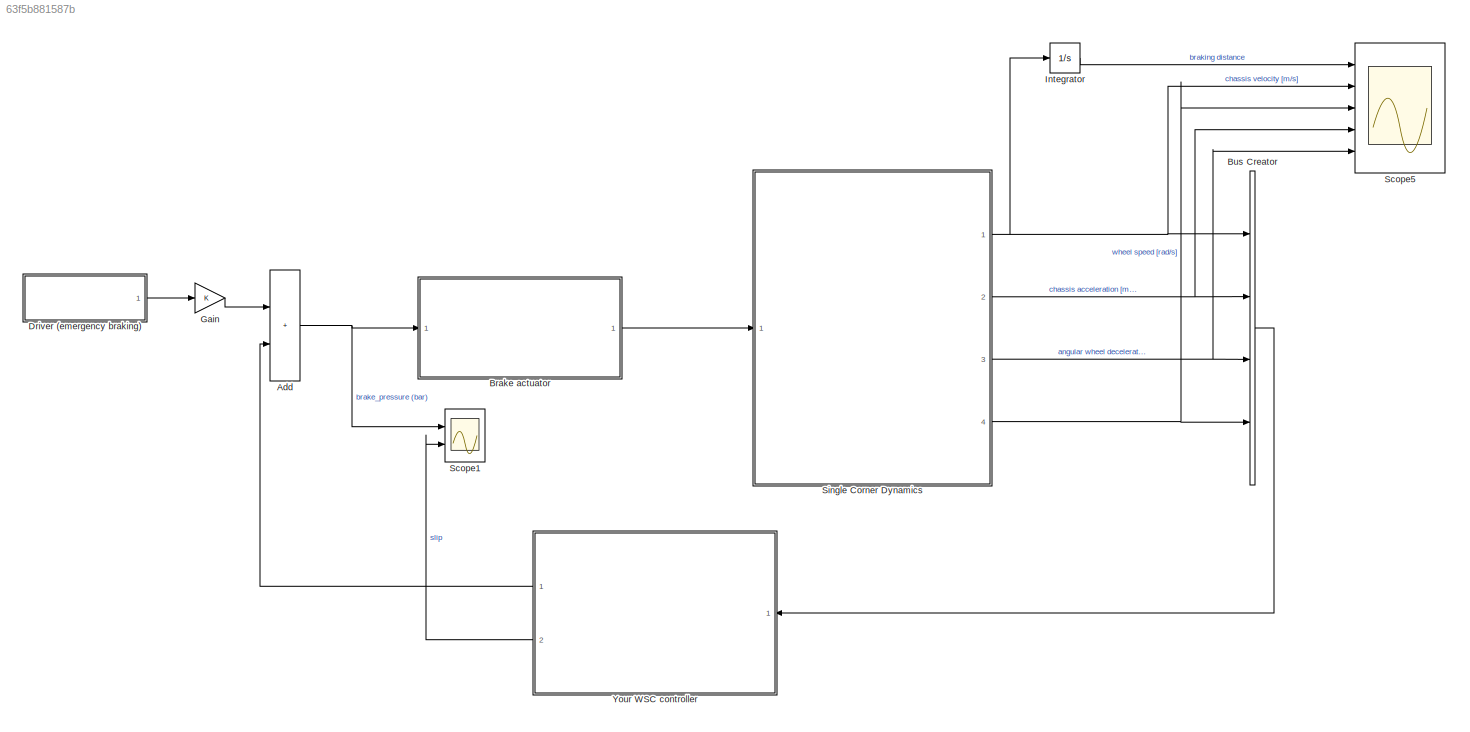
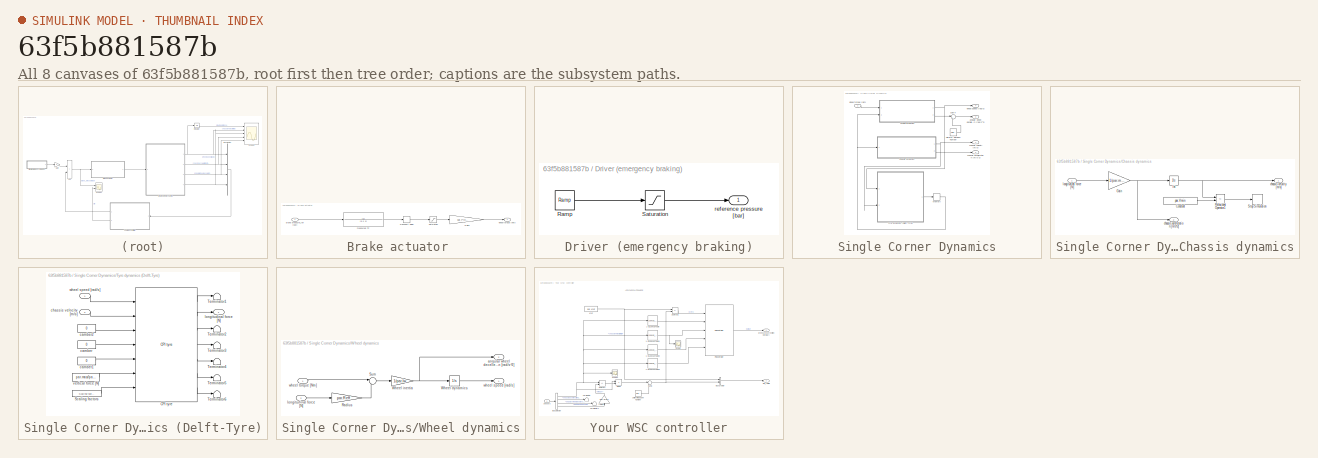
[diagram: thumbnail index - all 8 canvases of the model, root first then tree order]
MODEL slx_63f5b881587b
KIND model
CONFIG AbsTol = auto
CONFIG EnableMultiTasking = off
CONFIG FixedStep = auto
CONFIG MaxStep = auto
CONFIG MinStep = auto
CONFIG RelTol = 1e-3
CONFIG SampleTimeConstraint = Unconstrained
CONFIG Solver = VariableStepAuto
CONFIG SolverName = VariableStepAuto
CONFIG StartTime = 0.0
CONFIG StopTime = 10.0
BLOCK [Sum] Add
  IconShape = rectangular
  Ports = [2, 1]
BLOCK [SubSystem] Brake actuator 
  Ports = [1, 1]
  RequestExecContextInheritance = off
BLOCK [TransferFcn] Brake actuator / measured TF 
  Denominator = [0.1 1]
BLOCK [Gain] Brake actuator /Gain1
  Gain = par.Pres2Moment
BLOCK [Saturate] Brake actuator /Saturation
  LowerLimit = 0
  UpperLimit = par.max_pressure
BLOCK [TransportDelay] Brake actuator /Transport Delay
  DelayTime = 0.06
  Ports = [1, 1]
BLOCK [Inport] Brake actuator /brake preasure_ref [bar]
BLOCK [Outport] Brake actuator /wheel torque [Nm]
  VectorParamsAs1DForOutWhenUnconnected = off
BLOCK [BusCreator] Bus Creator
  DisplayOption = bar
  InheritFromInputs = on
  Inputs = 4
  Ports = [4, 1]
BLOCK [SubSystem] Driver (emergency braking)
  Ports = [0, 1]
  RequestExecContextInheritance = off
BLOCK [Reference] Driver (emergency braking)/Ramp  REF=simulink/Sources/Ramp
  Ports = [0, 1]
  SourceBlock = simulink/Sources/Ramp
  SourceProductBaseCode = SL
  SourceType = Ramp
BLOCK [Saturate] Driver (emergency braking)/Saturation
  LowerLimit = 0
  UpperLimit = 100
BLOCK [Outport] Driver (emergency braking)/reference pressure [bar]
  VectorParamsAs1DForOutWhenUnconnected = off
BLOCK [Gain] Gain
BLOCK [Integrator] Integrator
  Ports = [1, 1]
BLOCK [Scope] Scope1
  Floating = off
  NumInputPorts = 2
  Ports = [2]
  ScopeSpecificationString = Simulink.scopes.TimeScopeBlockCfg('CurrentConfiguration', extmgr.ConfigurationSet(extmgr.Configuration('Core','General UI',true),extmgr.Configuration('Core','Source UI',true),extmgr.Configuration('Sources','WiredSimulink',true,'DataLoggingVariableName','ScopeData1'),extmgr.Configuration('Visuals','Time Domain',true,'SerializedDisplays',{struct('MinYLimReal','-162.47683','MaxYLimReal','218.52937','...<+2092ch>
BLOCK [Scope] Scope5
  Floating = off
  NumInputPorts = 5
  Ports = [5]
  ScopeSpecificationString = Simulink.scopes.TimeScopeBlockCfg('CurrentConfiguration', extmgr.ConfigurationSet(extmgr.Configuration('Core','General UI',true),extmgr.Configuration('Core','Source UI',true),extmgr.Configuration('Sources','WiredSimulink',true,'DataLoggingVariableName','ScopeData2'),extmgr.Configuration('Visuals','Time Domain',true,'SerializedDisplays',{struct('MinYLimReal','-18.23122','MaxYLimReal','164.08101','Y...<+3855ch>
BLOCK [SubSystem] Single Corner Dynamics
  Ports = [1, 4]
  RequestExecContextInheritance = off
BLOCK [SubSystem] Single Corner Dynamics/Chassis dynamics
  Ports = [1, 2]
  RequestExecContextInheritance = off
BLOCK [Constant] Single Corner Dynamics/Chassis dynamics/Constant
  Value = par.Vmin
BLOCK [Gain] Single Corner Dynamics/Chassis dynamics/Gain
  Gain = 1/par.mass
BLOCK [Integrator] Single Corner Dynamics/Chassis dynamics/Int
  InitialCondition = par.V0
  LimitOutput = on
  LowerSaturationLimit = eps
  Ports = [1, 1]
  UpperSaturationLimit = 200/3.6
BLOCK [RelationalOperator] Single Corner Dynamics/Chassis dynamics/Relational Operator1
  Operator = <=
  Ports = [2, 1]
BLOCK [Stop] Single Corner Dynamics/Chassis dynamics/Stop Simulation
BLOCK [Outport] Single Corner Dynamics/Chassis dynamics/chassis acceleration [m//s^2]
  Port = 2
  VectorParamsAs1DForOutWhenUnconnected = off
BLOCK [Outport] Single Corner Dynamics/Chassis dynamics/chassis velocity [m//s]
  VectorParamsAs1DForOutWhenUnconnected = off
BLOCK [Inport] Single Corner Dynamics/Chassis dynamics/longitudinal force [N]
BLOCK [Memory] Single Corner Dynamics/Memory
BLOCK [Sum] Single Corner Dynamics/Sum4
  Inputs = |++
  Ports = [2, 1]
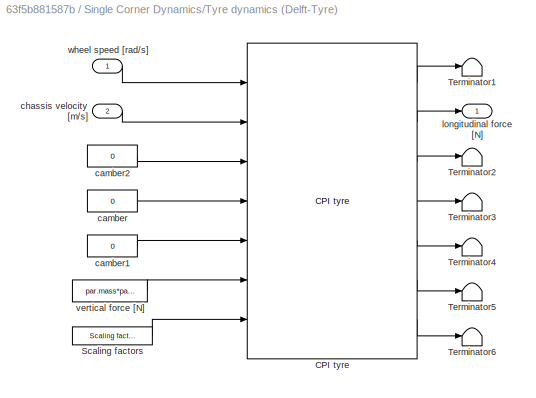
BLOCK [SubSystem] Single Corner Dynamics/Tyre dynamics (Delft-Tyre)
  Ports = [2, 1]
  RequestExecContextInheritance = off
BLOCK [Reference] Single Corner Dynamics/Tyre dynamics (Delft-Tyre)/CPI tyre  REF=Delft_Tyre_dtlib/Simulink/CPI tyre
  Ports = [7, 7]
  SourceBlock = Delft_Tyre_dtlib/Simulink/CPI tyre
  SourceType = CPI_tyre
  Tag = CPI tyre
BLOCK [Reference] Single Corner Dynamics/Tyre dynamics (Delft-Tyre)/Scaling factors  REF=Delft_Tyre_sm1glib/SimMechanics 1G/Scaling factors
  Ports = [0, 1]
  SourceBlock = Delft_Tyre_sm1glib/SimMechanics 1G/Scaling factors
  Tag = Scaling factors
BLOCK [Terminator] Single Corner Dynamics/Tyre dynamics (Delft-Tyre)/Terminator1
BLOCK [Terminator] Single Corner Dynamics/Tyre dynamics (Delft-Tyre)/Terminator2
BLOCK [Terminator] Single Corner Dynamics/Tyre dynamics (Delft-Tyre)/Terminator3
BLOCK [Terminator] Single Corner Dynamics/Tyre dynamics (Delft-Tyre)/Terminator4
BLOCK [Terminator] Single Corner Dynamics/Tyre dynamics (Delft-Tyre)/Terminator5
BLOCK [Terminator] Single Corner Dynamics/Tyre dynamics (Delft-Tyre)/Terminator6
BLOCK [Constant] Single Corner Dynamics/Tyre dynamics (Delft-Tyre)/camber
  Value = 0
BLOCK [Constant] Single Corner Dynamics/Tyre dynamics (Delft-Tyre)/camber1
  Value = 0
BLOCK [Constant] Single Corner Dynamics/Tyre dynamics (Delft-Tyre)/camber2
  Value = 0
BLOCK [Inport] Single Corner Dynamics/Tyre dynamics (Delft-Tyre)/chassis velocity [m//s]
  Port = 2
BLOCK [Outport] Single Corner Dynamics/Tyre dynamics (Delft-Tyre)/longitudinal force [N]
  VectorParamsAs1DForOutWhenUnconnected = off
BLOCK [Constant] Single Corner Dynamics/Tyre dynamics (Delft-Tyre)/vertical force [N]
  Value = par.mass*par.g
BLOCK [Inport] Single Corner Dynamics/Tyre dynamics (Delft-Tyre)/wheel speed [rad//s]
BLOCK [UniformRandomNumber] Single Corner Dynamics/Uniform Random Number
  Maximum = 0.5
  Minimum = -0.5
  SampleTime = 0.1
BLOCK [SubSystem] Single Corner Dynamics/Wheel dynamics
  Ports = [2, 2]
  RequestExecContextInheritance = off
BLOCK [Gain] Single Corner Dynamics/Wheel dynamics/Radius
  Gain = par.Reff
  OutDataTypeStr = Inherit: Same as input
  ParamDataTypeStr = Inherit: Same as input
  SaturateOnIntegerOverflow = on
BLOCK [Sum] Single Corner Dynamics/Wheel dynamics/Sum
  InputSameDT = on
  Inputs = |--
  OutDataTypeStr = Inherit: Same as first input
  Ports = [2, 1]
  SaturateOnIntegerOverflow = on
BLOCK [Integrator] Single Corner Dynamics/Wheel dynamics/Wheel dynamics
  InitialCondition = par.V0/par.Reff
  LimitOutput = on
  LowerSaturationLimit = eps
  Ports = [1, 1]
  UpperSaturationLimit = 200/3.6/par.Reff
BLOCK [Gain] Single Corner Dynamics/Wheel dynamics/Wheel inertia
  Gain = 1/par.Iw
  OutDataTypeStr = Inherit: Same as input
  ParamDataTypeStr = Inherit: Same as input
  SaturateOnIntegerOverflow = on
BLOCK [Outport] Single Corner Dynamics/Wheel dynamics/angular wheel decelleration [rad//s^2]
  Port = 2
  VectorParamsAs1DForOutWhenUnconnected = off
BLOCK [Inport] Single Corner Dynamics/Wheel dynamics/longitudinal force [N]
  Port = 2
BLOCK [Outport] Single Corner Dynamics/Wheel dynamics/wheel speed [rad//s]
  VectorParamsAs1DForOutWhenUnconnected = off
BLOCK [Inport] Single Corner Dynamics/Wheel dynamics/wheel torque [Nm]
BLOCK [Outport] Single Corner Dynamics/angular wheel decelleration [rad//s^2]
  Port = 3
  VectorParamsAs1DForOutWhenUnconnected = off
BLOCK [Outport] Single Corner Dynamics/chassis acceleration [m//s^2]
  Port = 2
  VectorParamsAs1DForOutWhenUnconnected = off
BLOCK [Outport] Single Corner Dynamics/chassis velocity [m//s]
  VectorParamsAs1DForOutWhenUnconnected = off
BLOCK [Outport] Single Corner Dynamics/wheel speed [rad//s]
  Port = 4
  VectorParamsAs1DForOutWhenUnconnected = off
BLOCK [Inport] Single Corner Dynamics/wheel torque [Nm]
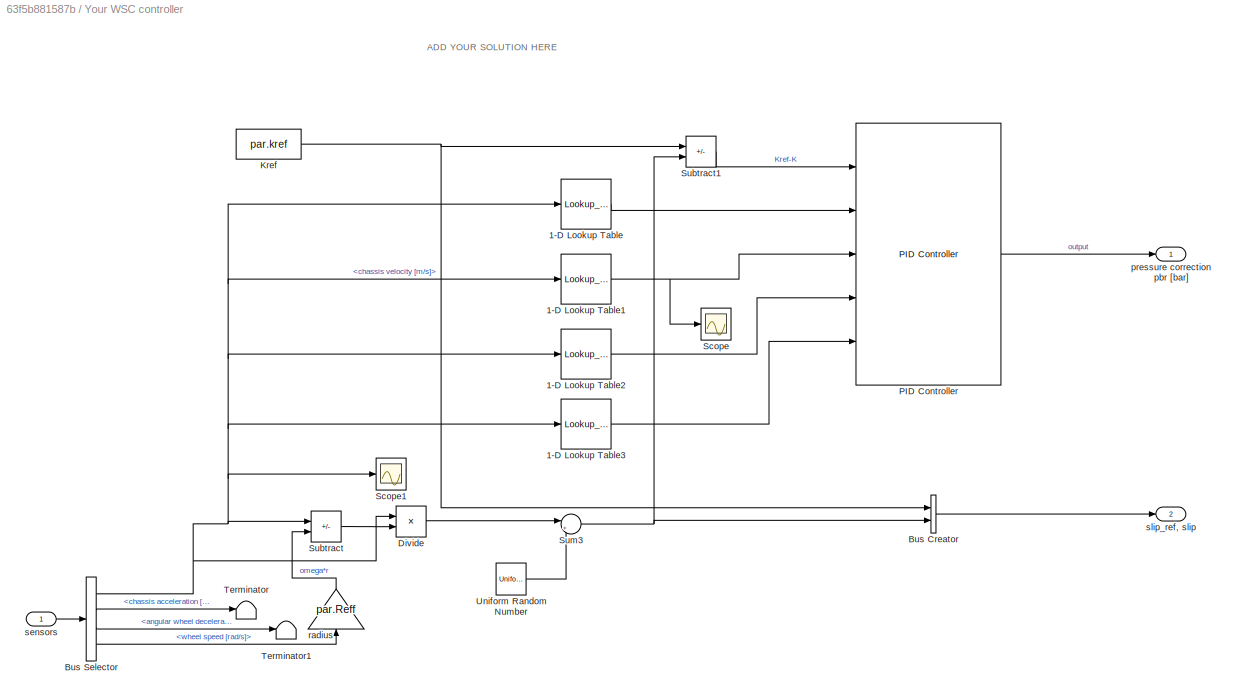
BLOCK [SubSystem] Your WSC controller
  Ports = [1, 2]
  RequestExecContextInheritance = off
BLOCK [Outport] Your WSC controller/ pressure correction pbr [bar]
  VectorParamsAs1DForOutWhenUnconnected = off
BLOCK [Lookup_n-D] Your WSC controller/1-D Lookup Table
  BreakpointsForDimension1 = [0;5;15;25.3;30]
  InternalRulePriority = Speed
  NumberOfTableDimensions = 1
  Ports = [1, 1]
  RndMeth = Simplest
  Table = [110;110*1.2;110*1.2;110*1.8;110*2]
BLOCK [Lookup_n-D] Your WSC controller/1-D Lookup Table1
  BreakpointsForDimension1 = [0;5;15;25;30]
  InternalRulePriority = Speed
  NumberOfTableDimensions = 1
  Ports = [1, 1]
  RndMeth = Simplest
  Table = [70*0.9;70*1.1;70*1.1;70*1.2;70*1.5]
BLOCK [Lookup_n-D] Your WSC controller/1-D Lookup Table2
  BreakpointsForDimension1 = [0;10;15;25;30]
  InternalRulePriority = Speed
  NumberOfTableDimensions = 1
  Ports = [1, 1]
  RndMeth = Simplest
  Table = [0.7;0.8;0.9;0.9;0.7]
BLOCK [Lookup_n-D] Your WSC controller/1-D Lookup Table3
  BreakpointsForDimension1 = [0;10;20;30;35]
  InternalRulePriority = Speed
  NumberOfTableDimensions = 1
  Ports = [1, 1]
  RndMeth = Simplest
  Table = [100;100;100;100;100]
BLOCK [BusCreator] Your WSC controller/Bus Creator
  DisplayOption = bar
  InheritFromInputs = on
  Inputs = 2
  Ports = [2, 1]
BLOCK [BusSelector] Your WSC controller/Bus Selector
  OutputSignals = chassis velocity [m/s],chassis acceleration [m/s^2],angular wheel deceleration [rad/s^2],wheel speed [rad/s]
  Ports = [1, 4]
BLOCK [Product] Your WSC controller/Divide
  Inputs = /*
  Ports = [2, 1]
BLOCK [Constant] Your WSC controller/Kref
  Value = par.kref
BLOCK [Reference] Your WSC controller/PID Controller  REF=simulink/Continuous/PID Controller
  Ports = [5, 1]
  SourceBlock = simulink/Continuous/PID Controller
  SourceProductBaseCode = SL
  SourceType = PID 1dof
BLOCK [Scope] Your WSC controller/Scope
  Floating = off
  NumInputPorts = 1
  Ports = [1]
  ScopeSpecificationString = Simulink.scopes.TimeScopeBlockCfg('CurrentConfiguration', extmgr.ConfigurationSet(extmgr.Configuration('Core','General UI',true),extmgr.Configuration('Core','Source UI',true),extmgr.Configuration('Sources','WiredSimulink',true,'DataLoggingVariableName','ScopeData1'),extmgr.Configuration('Visuals','Time Domain',true,'SerializedDisplays',{struct('MinYLimReal','66.93679','MaxYLimReal','105.34063','YL...<+1386ch>
BLOCK [Scope] Your WSC controller/Scope1
  Floating = off
  NumInputPorts = 1
  Ports = [1]
  ScopeSpecificationString = Simulink.scopes.TimeScopeBlockCfg('CurrentConfiguration', extmgr.ConfigurationSet(extmgr.Configuration('Core','General UI',true),extmgr.Configuration('Core','Source UI',true),extmgr.Configuration('Sources','WiredSimulink',true,'DataLoggingVariableName','ScopeData2'),extmgr.Configuration('Visuals','Time Domain',true,'SerializedDisplays',{struct('MinYLimReal','-1.04193','MaxYLimReal','37.15293','YLa...<+1387ch>
BLOCK [Sum] Your WSC controller/Subtract
  IconShape = rectangular
  Inputs = +-
  Ports = [2, 1]
BLOCK [Sum] Your WSC controller/Subtract1
  IconShape = rectangular
  Inputs = +-
  Ports = [2, 1]
BLOCK [Sum] Your WSC controller/Sum3
  Inputs = |++
  Ports = [2, 1]
BLOCK [Terminator] Your WSC controller/Terminator
BLOCK [Terminator] Your WSC controller/Terminator1
BLOCK [UniformRandomNumber] Your WSC controller/Uniform Random Number
  Maximum = 0.025
  Minimum = -0.025
  SampleTime = 0.1
BLOCK [Gain] Your WSC controller/radius
  Gain = par.Reff
  NameLocation = right
BLOCK [Inport] Your WSC controller/sensors
BLOCK [Outport] Your WSC controller/slip_ref, slip
  Port = 2
ANNOTATION Your WSC controller: ADD YOUR SOLUTION HERE
NET Add:1 -> Brake actuator :1, Scope1:1
LINE Brake actuator / measured TF :1 -> Brake actuator /Transport Delay:1
LINE Brake actuator /Gain1:1 -> Brake actuator /wheel torque [Nm]:1
LINE Brake actuator /Saturation:1 -> Brake actuator /Gain1:1
LINE Brake actuator /Transport Delay:1 -> Brake actuator /Saturation:1
LINE Brake actuator /brake preasure_ref [bar]:1 -> Brake actuator / measured TF :1
LINE Brake actuator :1 -> Single Corner Dynamics:1
LINE Bus Creator:1 -> Your WSC controller:1
LINE Driver (emergency braking)/Ramp:1 -> Driver (emergency braking)/Saturation:1
LINE Driver (emergency braking)/Saturation:1 -> Driver (emergency braking)/reference pressure [bar]:1
LINE Driver (emergency braking):1 -> Gain:1
LINE Gain:1 -> Add:1
LINE Integrator:1 -> Scope5:1
LINE Single Corner Dynamics/Chassis dynamics/Constant:1 -> Single Corner Dynamics/Chassis dynamics/Relational Operator1:2
NET Single Corner Dynamics/Chassis dynamics/Gain:1 -> Single Corner Dynamics/Chassis dynamics/Int:1, Single Corner Dynamics/Chassis dynamics/chassis acceleration [m//s^2]:1
NET Single Corner Dynamics/Chassis dynamics/Int:1 -> Single Corner Dynamics/Chassis dynamics/Relational Operator1:1, Single Corner Dynamics/Chassis dynamics/chassis velocity [m//s]:1
LINE Single Corner Dynamics/Chassis dynamics/Relational Operator1:1 -> Single Corner Dynamics/Chassis dynamics/Stop Simulation:1
LINE Single Corner Dynamics/Chassis dynamics/longitudinal force [N]:1 -> Single Corner Dynamics/Chassis dynamics/Gain:1
NET Single Corner Dynamics/Chassis dynamics:1 -> Single Corner Dynamics/Tyre dynamics (Delft-Tyre):2, Single Corner Dynamics/chassis velocity [m//s]:1
LINE Single Corner Dynamics/Chassis dynamics:2 -> Single Corner Dynamics/chassis acceleration [m//s^2]:1
NET Single Corner Dynamics/Memory:1 -> Single Corner Dynamics/Chassis dynamics:1, Single Corner Dynamics/Wheel dynamics:2
LINE Single Corner Dynamics/Sum4:1 -> Single Corner Dynamics/angular wheel decelleration [rad//s^2]:1
LINE Single Corner Dynamics/Tyre dynamics (Delft-Tyre)/CPI tyre:1 -> Single Corner Dynamics/Tyre dynamics (Delft-Tyre)/Terminator1:1
LINE Single Corner Dynamics/Tyre dynamics (Delft-Tyre)/CPI tyre:2 -> Single Corner Dynamics/Tyre dynamics (Delft-Tyre)/longitudinal force [N]:1
LINE Single Corner Dynamics/Tyre dynamics (Delft-Tyre)/CPI tyre:3 -> Single Corner Dynamics/Tyre dynamics (Delft-Tyre)/Terminator2:1
LINE Single Corner Dynamics/Tyre dynamics (Delft-Tyre)/CPI tyre:4 -> Single Corner Dynamics/Tyre dynamics (Delft-Tyre)/Terminator3:1
LINE Single Corner Dynamics/Tyre dynamics (Delft-Tyre)/CPI tyre:5 -> Single Corner Dynamics/Tyre dynamics (Delft-Tyre)/Terminator4:1
LINE Single Corner Dynamics/Tyre dynamics (Delft-Tyre)/CPI tyre:6 -> Single Corner Dynamics/Tyre dynamics (Delft-Tyre)/Terminator5:1
LINE Single Corner Dynamics/Tyre dynamics (Delft-Tyre)/CPI tyre:7 -> Single Corner Dynamics/Tyre dynamics (Delft-Tyre)/Terminator6:1
LINE Single Corner Dynamics/Tyre dynamics (Delft-Tyre)/Scaling factors:1 -> Single Corner Dynamics/Tyre dynamics (Delft-Tyre)/CPI tyre:7
LINE Single Corner Dynamics/Tyre dynamics (Delft-Tyre)/camber1:1 -> Single Corner Dynamics/Tyre dynamics (Delft-Tyre)/CPI tyre:5
LINE Single Corner Dynamics/Tyre dynamics (Delft-Tyre)/camber2:1 -> Single Corner Dynamics/Tyre dynamics (Delft-Tyre)/CPI tyre:3
LINE Single Corner Dynamics/Tyre dynamics (Delft-Tyre)/camber:1 -> Single Corner Dynamics/Tyre dynamics (Delft-Tyre)/CPI tyre:4
LINE Single Corner Dynamics/Tyre dynamics (Delft-Tyre)/chassis velocity [m//s]:1 -> Single Corner Dynamics/Tyre dynamics (Delft-Tyre)/CPI tyre:2
LINE Single Corner Dynamics/Tyre dynamics (Delft-Tyre)/vertical force [N]:1 -> Single Corner Dynamics/Tyre dynamics (Delft-Tyre)/CPI tyre:6
LINE Single Corner Dynamics/Tyre dynamics (Delft-Tyre)/wheel speed [rad//s]:1 -> Single Corner Dynamics/Tyre dynamics (Delft-Tyre)/CPI tyre:1
LINE Single Corner Dynamics/Tyre dynamics (Delft-Tyre):1 -> Single Corner Dynamics/Memory:1
LINE Single Corner Dynamics/Uniform Random Number:1 -> Single Corner Dynamics/Sum4:2
LINE Single Corner Dynamics/Wheel dynamics/Radius:1 -> Single Corner Dynamics/Wheel dynamics/Sum:2
LINE Single Corner Dynamics/Wheel dynamics/Sum:1 -> Single Corner Dynamics/Wheel dynamics/Wheel inertia:1
LINE Single Corner Dynamics/Wheel dynamics/Wheel dynamics:1 -> Single Corner Dynamics/Wheel dynamics/wheel speed [rad//s]:1
NET Single Corner Dynamics/Wheel dynamics/Wheel inertia:1 -> Single Corner Dynamics/Wheel dynamics/Wheel dynamics:1, Single Corner Dynamics/Wheel dynamics/angular wheel decelleration [rad//s^2]:1
LINE Single Corner Dynamics/Wheel dynamics/longitudinal force [N]:1 -> Single Corner Dynamics/Wheel dynamics/Radius:1
LINE Single Corner Dynamics/Wheel dynamics/wheel torque [Nm]:1 -> Single Corner Dynamics/Wheel dynamics/Sum:1
NET Single Corner Dynamics/Wheel dynamics:1 -> Single Corner Dynamics/Tyre dynamics (Delft-Tyre):1, Single Corner Dynamics/wheel speed [rad//s]:1
LINE Single Corner Dynamics/Wheel dynamics:2 -> Single Corner Dynamics/Sum4:1
LINE Single Corner Dynamics/wheel torque [Nm]:1 -> Single Corner Dynamics/Wheel dynamics:1
NET Single Corner Dynamics:1 -> Bus Creator:1, Integrator:1, Scope5:2
NET Single Corner Dynamics:2 -> Bus Creator:2, Scope5:4
NET Single Corner Dynamics:3 -> Bus Creator:3, Scope5:5
NET Single Corner Dynamics:4 -> Bus Creator:4, Scope5:3
NET Your WSC controller/1-D Lookup Table1:1 -> Your WSC controller/PID Controller:3, Your WSC controller/Scope:1
LINE Your WSC controller/1-D Lookup Table2:1 -> Your WSC controller/PID Controller:4
LINE Your WSC controller/1-D Lookup Table3:1 -> Your WSC controller/PID Controller:5
LINE Your WSC controller/1-D Lookup Table:1 -> Your WSC controller/PID Controller:2
LINE Your WSC controller/Bus Creator:1 -> Your WSC controller/slip_ref, slip:1
NET Your WSC controller/Bus Selector:1 -> Your WSC controller/1-D Lookup Table1:1, Your WSC controller/1-D Lookup Table2:1, Your WSC controller/1-D Lookup Table3:1, Your WSC controller/1-D Lookup Table:1, Your WSC controller/Divide:1, Your WSC controller/Scope1:1, Your WSC controller/Subtract:1
LINE Your WSC controller/Bus Selector:2 -> Your WSC controller/Terminator:1
LINE Your WSC controller/Bus Selector:3 -> Your WSC controller/Terminator1:1
LINE Your WSC controller/Bus Selector:4 -> Your WSC controller/radius:1
LINE Your WSC controller/Divide:1 -> Your WSC controller/Sum3:1
NET Your WSC controller/Kref:1 -> Your WSC controller/Bus Creator:1, Your WSC controller/Subtract1:1
LINE Your WSC controller/PID Controller:1 -> Your WSC controller/ pressure correction pbr [bar]:1
LINE Your WSC controller/Subtract1:1 -> Your WSC controller/PID Controller:1
LINE Your WSC controller/Subtract:1 -> Your WSC controller/Divide:2
NET Your WSC controller/Sum3:1 -> Your WSC controller/Bus Creator:2, Your WSC controller/Subtract1:2
LINE Your WSC controller/Uniform Random Number:1 -> Your WSC controller/Sum3:2
LINE Your WSC controller/radius:1 -> Your WSC controller/Subtract:2
LINE Your WSC controller/sensors:1 -> Your WSC controller/Bus Selector:1
LINE Your WSC controller:1 -> Add:2
LINE Your WSC controller:2 -> Scope1:2
note: NET lines group one-source signal fan-out (src -> all destinations, sorted); 1:1 wires keep LINE
